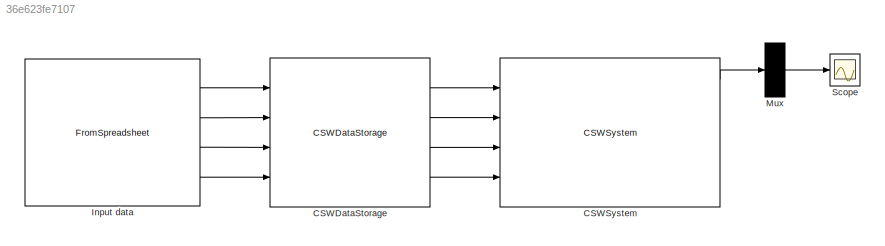
MODEL slx_36e623fe7107
KIND model
CONFIG AbsTol = auto
CONFIG EnableMultiTasking = off
CONFIG FixedStep = 1
CONFIG MaxStep = auto
CONFIG MinStep = auto
CONFIG RelTol = 1e-3
CONFIG SampleTimeConstraint = Unconstrained
CONFIG SolverName = FixedStepDiscrete
CONFIG StartTime = 0.0
CONFIG StopTime = 62
WORKSPACE source: mxarray member
WORKSPACE t = 0
BLOCK [Reference] CSWDataStorage  REF=CSWLibrary/CSWDataStorage
  Ports = [4, 4]
  SourceBlock = CSWLibrary/CSWDataStorage
  SourceProductName = Curve Speed Warning System Toolbox
BLOCK [Reference] CSWSystem  REF=CSWLibrary/CSWSystem
  Ports = [4, 6]
  SourceBlock = CSWLibrary/CSWSystem
  SourceProductName = Curve Speed Warning System Toolbox
BLOCK [FromSpreadsheet] Input data
  FileName = <PATH-TO-FILE>\exampleData.xlsx
  OutputAfterLastPoint = Ground value
  Ports = [0, 4]
  Range = A1:D64
  SampleTime = -1
  SheetName = Sheet
  TreatFirstColumnAs = Data
BLOCK [Mux] Mux
  DisplayOption = bar
  Inputs = 1
  Ports = [1, 1]
BLOCK [Scope] Scope
  Floating = off
  NumInputPorts = 1
  Ports = [1]
  ScopeSpecificationString = Simulink.scopes.TimeScopeBlockCfg('CurrentConfiguration', extmgr.ConfigurationSet(extmgr.Configuration('Core','General UI',true),extmgr.Configuration('Core','Source UI',true),extmgr.Configuration('Sources','WiredSimulink',true),extmgr.Configuration('Visuals','Time Domain',true,'SerializedDisplays',{struct('MinYLimReal','-1.25','MaxYLimReal','11.25','YLabelReal','','MinYLimMag','0.00000','MaxYLimMa...<+1358ch>
LINE CSWDataStorage:1 -> CSWSystem:1
LINE CSWDataStorage:2 -> CSWSystem:2
LINE CSWDataStorage:3 -> CSWSystem:3
LINE CSWDataStorage:4 -> CSWSystem:4
LINE CSWSystem:1 -> Mux:1
LINE Input data:1 -> CSWDataStorage:1
LINE Input data:2 -> CSWDataStorage:2
LINE Input data:3 -> CSWDataStorage:3
LINE Input data:4 -> CSWDataStorage:4
LINE Mux:1 -> Scope:1
